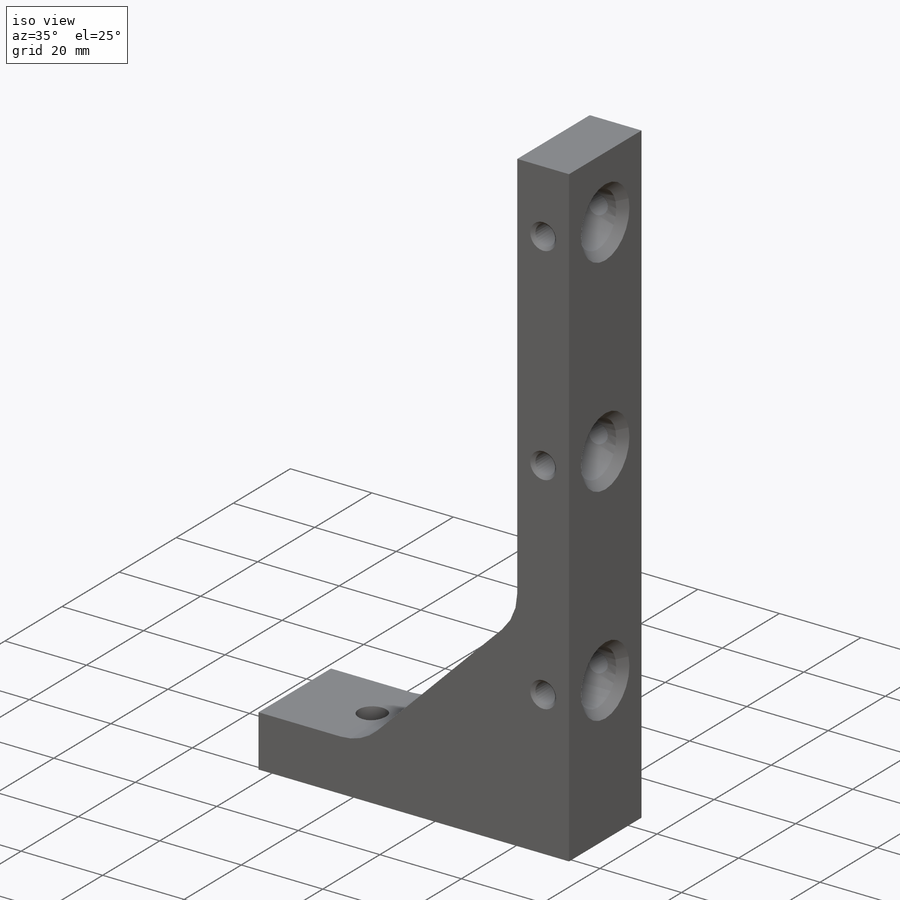
[diagram: iso view]
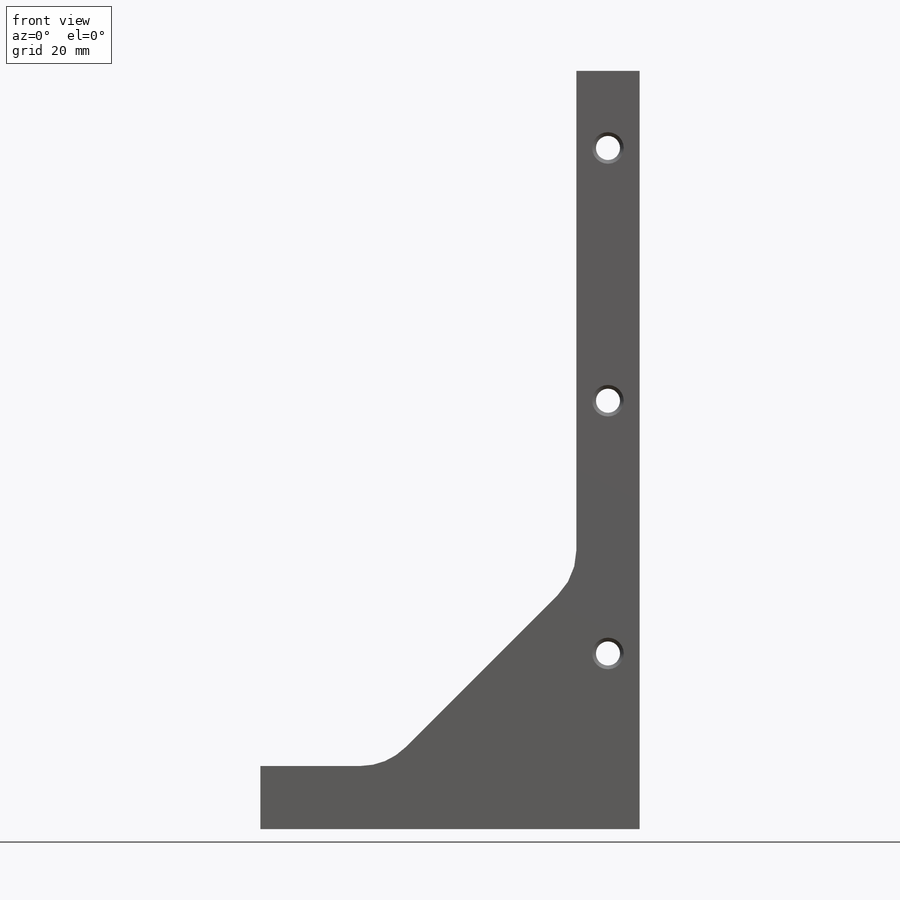
[diagram: front view]
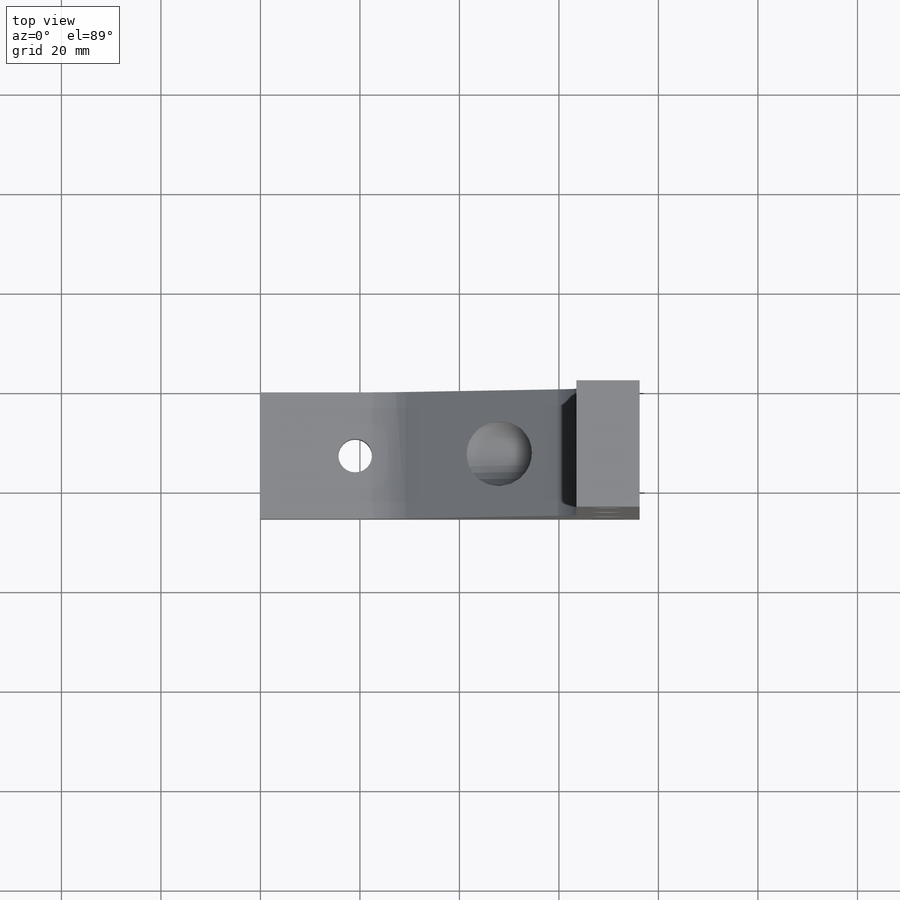
[diagram: top view]
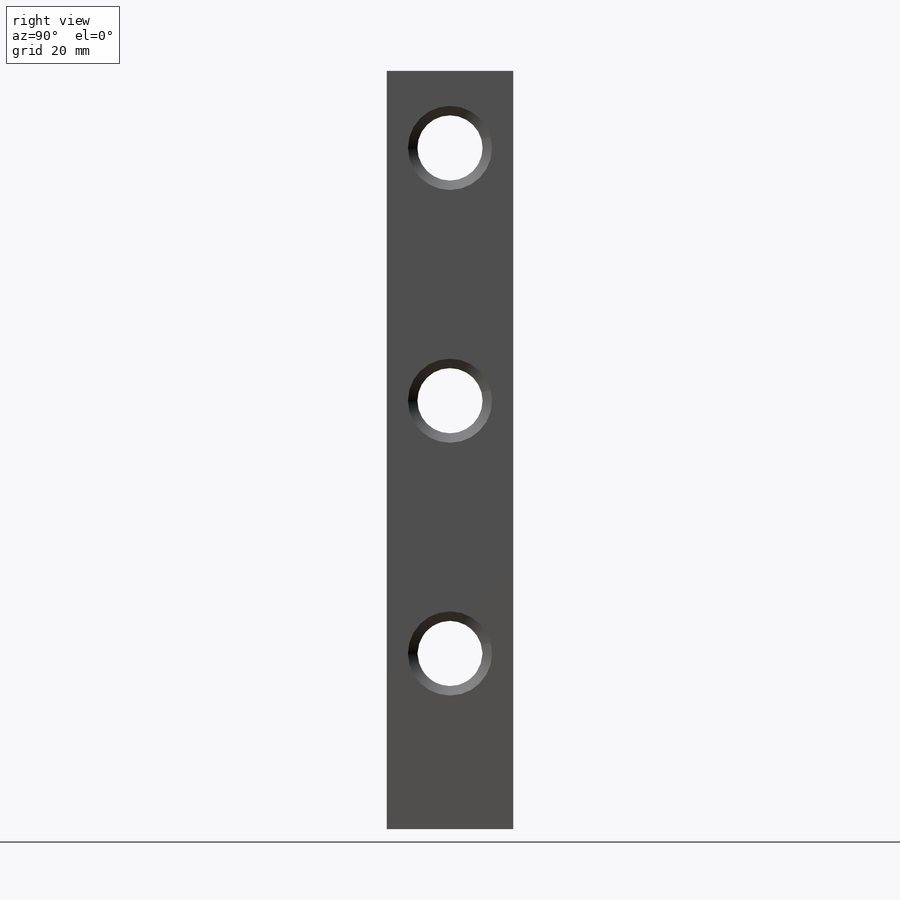
[diagram: right view]
SOLIDWORKS PART (.sldprt)
format: sldprt  version: not decoded by parser v0  size: 314,368 bytes
history: native  units: mm
features: sketch x7, hole x3, thread x2, material x1, extrude x1 + 1 further entry (+13 scaffold rows collapsed)
feature tree (28):
  scaffold x13  (default folders/planes/origin — collapsed)
  material  "6061-T6 Al"
  "Origin"  ID=-1
  sketch  "Sketch1"  dims[c1.D8=6.35mm c1.D4=12.7mm c1.D1=63.5mm c1.D2=12.7mm c1.D3=117.724mm c2.D3=45.0deg c2.D4=127.0mm c2.D5=25.4mm c2.D6=12.7mm c3.D6=120.0deg c3.D4=133.35mm c4.D6=12.7mm c4.D4=25.4mm c4.D7=152.4mm c4.D1=76.2mm]
  extrude  "Boss-Extrude1"  Depth=25.4mm
  hole  "Tapped Hole for 1/4-20 Helicoil1"  Diameter=6.7564mm Depth=20.5232mm
  sketch  "Sketch4"  dims[c1.D1=19.05mm c1.D2=31.75mm c2.D1=19.05mm]
  sketch  "Sketch3"  dims[hole-wizard template sketch: 46 standard entries collapsed; hole parameters kept: c15.Tap Drill Dia.=6.7564mm c15.Tap Drill Depth=20.5232mm c15.D3=~14.816244mm c15.Drill Angle=118.0deg]
  thread  "Hole Thread1"  Diameter=11.6586mm  [1 undecoded]
  thread  "Hole Thread2"  Diameter=11.6586mm  [1 undecoded]
  hole  "33/64 (0.51563) Diameter Hole1"  Diameter=13.097002mm Depth=76.2mm
  sketch  "Sketch6"  dims[D1=86.106mm D2=50.8mm D3=50.8mm]
  sketch  "Sketch5"  dims[hole-wizard template sketch: 54 standard entries collapsed; hole parameters kept: c17.Thru Hole Dia.=~13.097002mm c17.Thru Hole Depth=76.2mm c17.Far C'Sink Dia.=~16.907002mm c17.D4=~2.963249mm c17.Far C'Sink Angle=90.0deg]
  hole  "#11 (0.191) Diameter Hole1"  Diameter=4.8514mm Depth=25.4mm
  sketch  "Sketch8"  dims[D1=86.106mm D2=50.8mm D3=50.8mm]
  sketch  "Sketch7"  dims[hole-wizard template sketch: 46 standard entries collapsed; hole parameters kept: c15.Thru Hole Dia.=4.8514mm c15.Thru Hole Depth=25.4mm c15.Near C'Sink Dia.=6.35mm c15.D4=~3.666174mm c15.Near C'Sink Angle=90.0deg c15.Far C'Sink Dia.=6.35mm c15.D6=~9.919017mm c15.Far C'Sink Angle=90.0deg]
decode coverage: 13 of 13 modeling features carry decoded parameters; 1 rows unclassified (native names shown)
note: ~ marks probable driven/reference dimensions
note: 2 parameter values undecoded
note: suppression state not decoded; provenance and decode notes live in map.json
